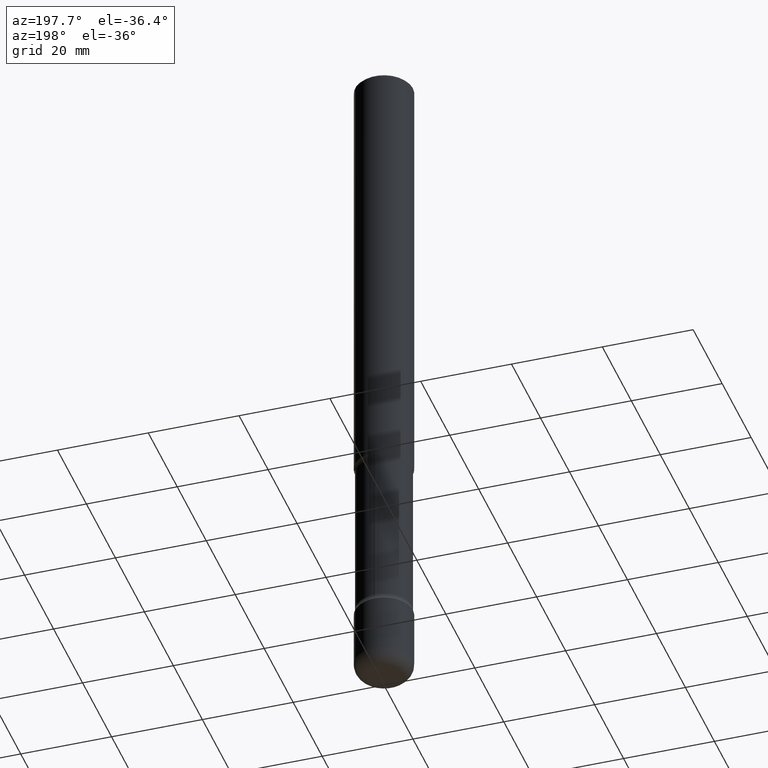
[diagram: clean part render]
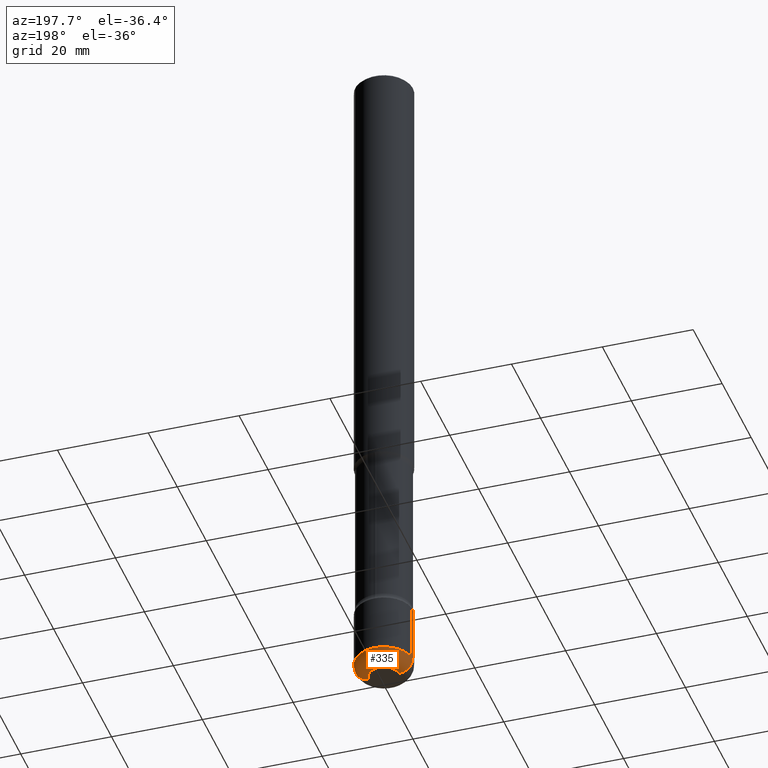
[diagram: same view with one face highlighted and labeled with its STEP entity id]
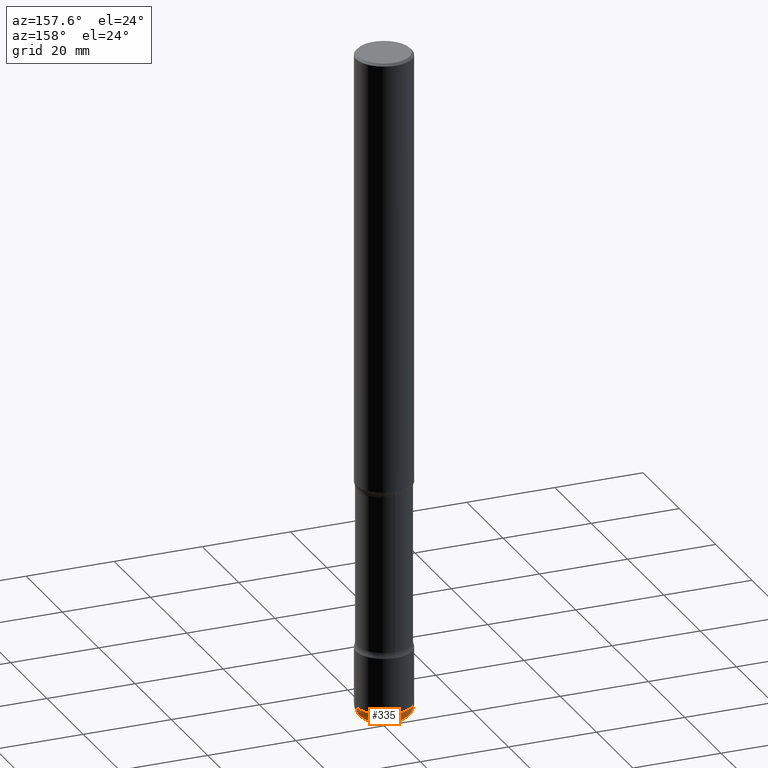
[diagram: same view with one face highlighted and labeled with its STEP entity id]
A machine part, auxiliary view. The second image highlights one B-rep face of the part: STEP entity #335.
A second angle (auxiliary view) of the same face is appended — the face is thin or edge-on in the first view.
In plain terms, the highlighted toroidal blend (fillet) surface has major radius 3.302 mm and minor (blend) radius 3.048 mm.
Its self-contained STEP definition (entity closure, byte-faithful):
#7 = CARTESIAN_POINT ( 'NONE',  ( 0.2499999999999996947, -2.227565094181926275E-14, -5.880000000000000782 ) ) ;
#54 = DIRECTION ( 'NONE',  ( 1.000000000000000000, -6.982962677686262766E-15, 0.000000000000000000 ) ) ;
#61 = CARTESIAN_POINT ( 'NONE',  ( -0.1300000000000000322, -1.938936795478409915E-14, -5.999999999999999112 ) ) ;
#76 = CARTESIAN_POINT ( 'NONE',  ( 1.467281283711081734E-28, -2.094888803305886955E-14, -5.999999999999999112 ) ) ;
#122 = CARTESIAN_POINT ( 'NONE',  ( 1.437935658036860328E-28, -2.052991027239769923E-14, -5.880000000000000782 ) ) ;
#169 = CIRCLE ( 'NONE', #286, 0.1300000000000000322 ) ;
#178 = VERTEX_POINT ( 'NONE', #61 ) ;
#189 = CARTESIAN_POINT ( 'NONE',  ( 0.1300000000000000044, -2.143769542049691264E-14, -5.880000000000000782 ) ) ;
#244 = CIRCLE ( 'NONE', #402, 0.1199999999999993849 ) ;
#254 = ORIENTED_EDGE ( 'NONE', *, *, #512, .T. ) ;
#266 = DIRECTION ( 'NONE',  ( -2.445468806185136597E-29, 3.491481338843145583E-15, 1.000000000000000000 ) ) ;
#278 = EDGE_CURVE ( 'NONE', #604, #178, #169, .T. ) ;
#286 = AXIS2_PLACEMENT_3D ( 'NONE', #76, #266, #636 ) ;
#305 = DIRECTION ( 'NONE',  ( -6.982962677686266711E-15, -1.000000000000000000, 3.491481338843145583E-15 ) ) ;
#335 = ADVANCED_FACE ( 'NONE', ( #518 ), #532, .T. ) ;
#341 = ORIENTED_EDGE ( 'NONE', *, *, #564, .F. ) ;
#352 = DIRECTION ( 'NONE',  ( 7.105427357601001859E-15, 1.000000000000000000, -3.491481338843145583E-15 ) ) ;
#367 = DIRECTION ( 'NONE',  ( -2.445468806185136597E-29, 3.491481338843145583E-15, 1.000000000000000000 ) ) ;
#373 = DIRECTION ( 'NONE',  ( 1.000000000000000000, -6.982962677686272233E-15, 0.000000000000000000 ) ) ;
#393 = DIRECTION ( 'NONE',  ( 1.000000000000000000, -6.982962677686264344E-15, 4.883557194083112340E-29 ) ) ;
#394 = VERTEX_POINT ( 'NONE', #522 ) ;
#402 = AXIS2_PLACEMENT_3D ( 'NONE', #189, #305, #373 ) ;
#404 = CIRCLE ( 'NONE', #444, 0.2500000000000000000 ) ;
#444 = AXIS2_PLACEMENT_3D ( 'NONE', #122, #367, #54 ) ;
#512 = EDGE_CURVE ( 'NONE', #178, #394, #581, .T. ) ;
#518 = FACE_OUTER_BOUND ( 'NONE', #639, .T. ) ;
#522 = CARTESIAN_POINT ( 'NONE',  ( -0.2499999999999996947, -1.875355343299744876E-14, -5.880000000000000782 ) ) ;
#532 = TOROIDAL_SURFACE ( 'NONE', #722, 0.1300000000000000044, 0.1199999999999993711 ) ;
#535 = CARTESIAN_POINT ( 'NONE',  ( -0.1300000000000000044, -1.960620471590956659E-14, -5.880000000000000782 ) ) ;
#564 = EDGE_CURVE ( 'NONE', #604, #732, #244, .T. ) ;
#571 = CARTESIAN_POINT ( 'NONE',  ( 1.437935658036860328E-28, -2.052991027239769923E-14, -5.880000000000000782 ) ) ;
#581 = CIRCLE ( 'NONE', #749, 0.1199999999999993849 ) ;
#598 = DIRECTION ( 'NONE',  ( -1.000000000000000000, 7.105427357600994759E-15, 0.000000000000000000 ) ) ;
#604 = VERTEX_POINT ( 'NONE', #799 ) ;
#636 = DIRECTION ( 'NONE',  ( 1.000000000000000000, -6.982962677686256455E-15, 0.000000000000000000 ) ) ;
#639 = EDGE_LOOP ( 'NONE', ( #679, #254, #727, #341 ) ) ;
#644 = EDGE_CURVE ( 'NONE', #732, #394, #404, .T. ) ;
#645 = DIRECTION ( 'NONE',  ( -2.445468806185136597E-29, 3.491481338843145583E-15, 1.000000000000000000 ) ) ;
#679 = ORIENTED_EDGE ( 'NONE', *, *, #278, .T. ) ;
#722 = AXIS2_PLACEMENT_3D ( 'NONE', #571, #645, #393 ) ;
#727 = ORIENTED_EDGE ( 'NONE', *, *, #644, .F. ) ;
#732 = VERTEX_POINT ( 'NONE', #7 ) ;
#749 = AXIS2_PLACEMENT_3D ( 'NONE', #535, #352, #598 ) ;
#799 = CARTESIAN_POINT ( 'NONE',  ( 0.1300000000000000322, -2.185667318115808296E-14, -5.999999999999999112 ) ) ;